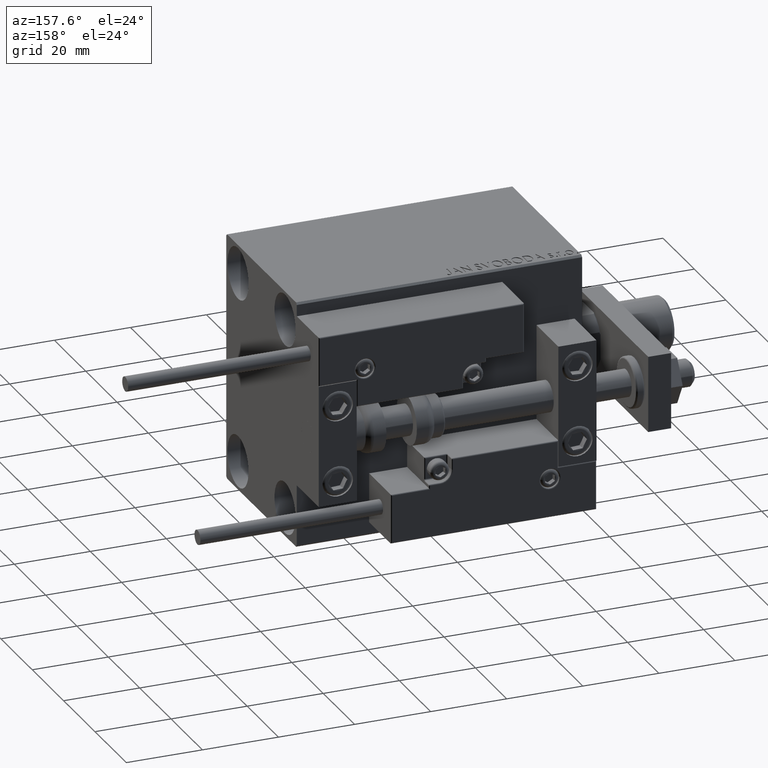
[diagram: clean part render]
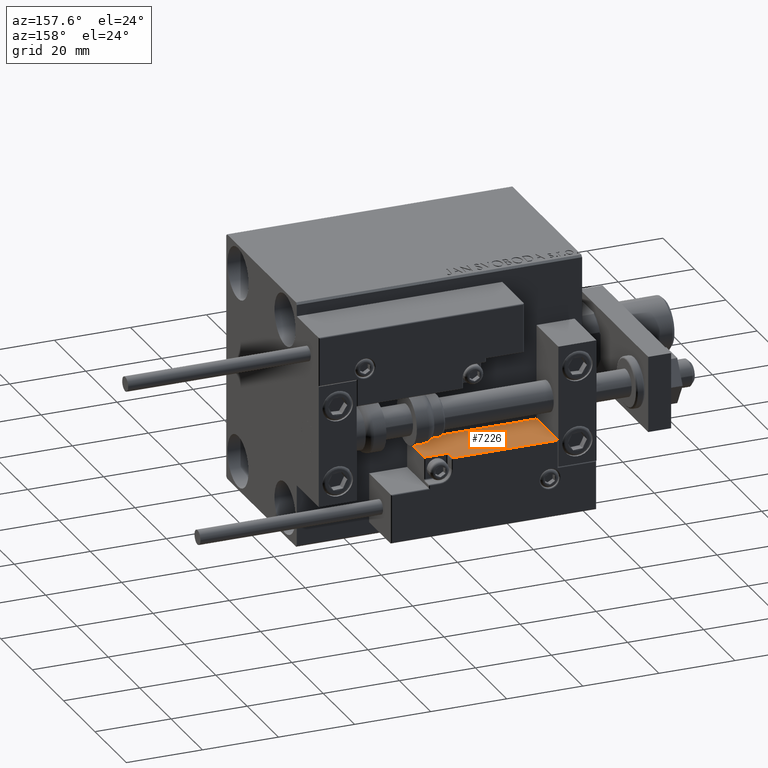
[diagram: same view with one face highlighted and labeled with its STEP entity id]
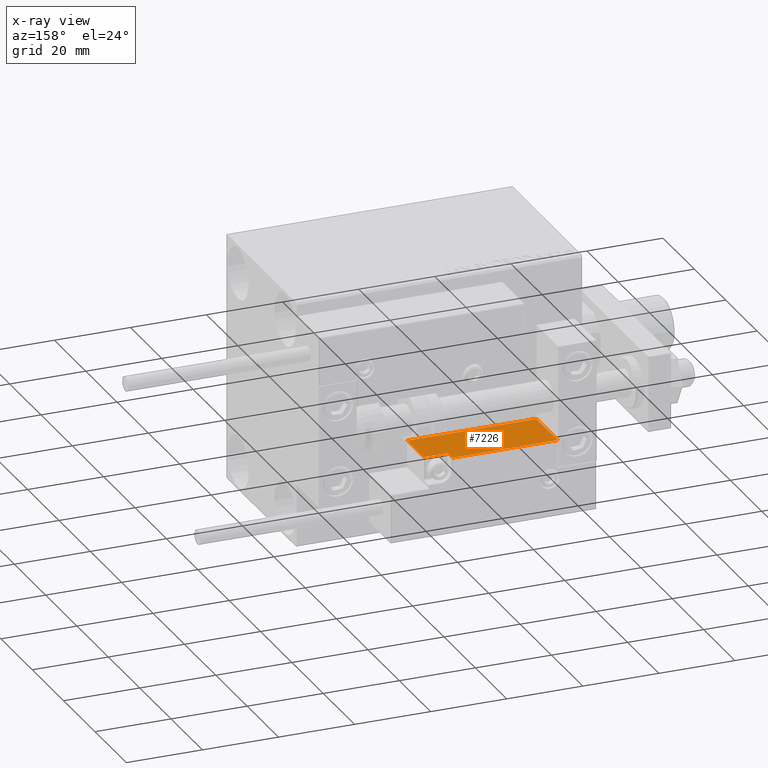
[diagram: x-ray of the same camera — body ghosted, the highlighted face saturated]
A machine part, auxiliary view. The second image highlights one B-rep face of the part: STEP entity #7226.
The next image is the same camera in x-ray: the body ghosted, the highlighted face saturated — about 0% of this face is hidden behind the body in this view.
In plain terms, the highlighted planar face has unit normal (-0, -0, -1).
Its self-contained STEP definition (entity closure, byte-faithful):
#827 = EDGE_CURVE ( 'NONE', #1530, #35574, #31218, .T. ) ;
#1530 = VERTEX_POINT ( 'NONE', #32802 ) ;
#2014 = VECTOR ( 'NONE', #29466, 1000.000000000000000 ) ;
#2025 = CARTESIAN_POINT ( 'NONE',  ( 11.00000000000000000, 3.252606517456513302E-15, 10.69999999999999929 ) ) ;
#2620 = VERTEX_POINT ( 'NONE', #25867 ) ;
#4227 = AXIS2_PLACEMENT_3D ( 'NONE', #48450, #17400, #20501 ) ;
#4231 = VERTEX_POINT ( 'NONE', #40750 ) ;
#5413 = DIRECTION ( 'NONE',  ( -1.000000000000000000, 0.000000000000000000, -0.000000000000000000 ) ) ;
#7226 = ADVANCED_FACE ( 'NONE', ( #16294 ), #15785, .F. ) ;
#7831 = ORIENTED_EDGE ( 'NONE', *, *, #48547, .T. ) ;
#9537 = EDGE_CURVE ( 'NONE', #15694, #2620, #24071, .T. ) ;
#10637 = ORIENTED_EDGE ( 'NONE', *, *, #827, .T. ) ;
#11492 = VERTEX_POINT ( 'NONE', #15076 ) ;
#14778 = EDGE_CURVE ( 'NONE', #35574, #2620, #22350, .T. ) ;
#14899 = DIRECTION ( 'NONE',  ( 1.000000000000000000, 0.000000000000000000, 0.000000000000000000 ) ) ;
#15076 = CARTESIAN_POINT ( 'NONE',  ( 10.70000000000000107, 3.252606517456513302E-15, 11.29999999999999893 ) ) ;
#15590 = EDGE_CURVE ( 'NONE', #15694, #4231, #49502, .T. ) ;
#15694 = VERTEX_POINT ( 'NONE', #19698 ) ;
#15785 = PLANE ( 'NONE',  #35011 ) ;
#15828 = CARTESIAN_POINT ( 'NONE',  ( 10.70000000000000107, 3.252606517456513302E-15, 13.70000000000000107 ) ) ;
#16294 = FACE_OUTER_BOUND ( 'NONE', #50184, .T. ) ;
#16701 = CARTESIAN_POINT ( 'NONE',  ( -16.99999999999999289, 3.252606517456513302E-15, 13.70000000000000107 ) ) ;
#16885 = DIRECTION ( 'NONE',  ( -0.000000000000000000, -0.000000000000000000, -1.000000000000000000 ) ) ;
#17210 = LINE ( 'NONE', #16701, #18262 ) ;
#17341 = CARTESIAN_POINT ( 'NONE',  ( -16.99999999999999289, 3.252606517456513302E-15, 0.000000000000000000 ) ) ;
#17386 = ORIENTED_EDGE ( 'NONE', *, *, #14778, .T. ) ;
#17400 = DIRECTION ( 'NONE',  ( -0.000000000000000000, -1.000000000000000000, -0.000000000000000000 ) ) ;
#17516 = DIRECTION ( 'NONE',  ( 0.000000000000000000, -0.000000000000000000, 1.000000000000000000 ) ) ;
#17740 = ORIENTED_EDGE ( 'NONE', *, *, #35234, .F. ) ;
#18262 = VECTOR ( 'NONE', #5413, 1000.000000000000000 ) ;
#19338 = ORIENTED_EDGE ( 'NONE', *, *, #9537, .F. ) ;
#19698 = CARTESIAN_POINT ( 'NONE',  ( 16.99999999999999289, 3.252606517456513302E-15, 10.69999999999999929 ) ) ;
#20501 = DIRECTION ( 'NONE',  ( 0.000000000000000000, 0.000000000000000000, 1.000000000000000000 ) ) ;
#22350 = LINE ( 'NONE', #41579, #47051 ) ;
#23234 = VERTEX_POINT ( 'NONE', #15828 ) ;
#24071 = LINE ( 'NONE', #31769, #25260 ) ;
#24496 = DIRECTION ( 'NONE',  ( 0.000000000000000000, 1.000000000000000000, 0.000000000000000000 ) ) ;
#24746 = ORIENTED_EDGE ( 'NONE', *, *, #15590, .T. ) ;
#25260 = VECTOR ( 'NONE', #16885, 1000.000000000000000 ) ;
#25867 = CARTESIAN_POINT ( 'NONE',  ( 16.99999999999999289, 3.252606517456513302E-15, 0.000000000000000000 ) ) ;
#29120 = ORIENTED_EDGE ( 'NONE', *, *, #38241, .T. ) ;
#29466 = DIRECTION ( 'NONE',  ( -1.000000000000000000, 0.000000000000000000, -0.000000000000000000 ) ) ;
#31218 = LINE ( 'NONE', #47114, #33283 ) ;
#31769 = CARTESIAN_POINT ( 'NONE',  ( 16.99999999999999289, 3.252606517456513302E-15, 14.00000000000000000 ) ) ;
#32217 = VECTOR ( 'NONE', #17516, 1000.000000000000000 ) ;
#32802 = CARTESIAN_POINT ( 'NONE',  ( -16.99999999999999289, 3.252606517456513302E-15, 13.70000000000000107 ) ) ;
#32903 = CARTESIAN_POINT ( 'NONE',  ( 10.70000000000000107, 3.252606517456513302E-15, 14.00000000000000000 ) ) ;
#33283 = VECTOR ( 'NONE', #50753, 1000.000000000000000 ) ;
#35011 = AXIS2_PLACEMENT_3D ( 'NONE', #39383, #24496, #43734 ) ;
#35234 = EDGE_CURVE ( 'NONE', #11492, #4231, #41922, .T. ) ;
#35574 = VERTEX_POINT ( 'NONE', #17341 ) ;
#36493 = LINE ( 'NONE', #32903, #32217 ) ;
#38241 = EDGE_CURVE ( 'NONE', #23234, #1530, #17210, .T. ) ;
#39383 = CARTESIAN_POINT ( 'NONE',  ( -16.99999999999999289, 3.252606517456513302E-15, 14.00000000000000000 ) ) ;
#40750 = CARTESIAN_POINT ( 'NONE',  ( 11.29999999999999893, 3.252606517456513302E-15, 10.69999999999999929 ) ) ;
#41579 = CARTESIAN_POINT ( 'NONE',  ( -16.99999999999999289, 3.252606517456513302E-15, 0.000000000000000000 ) ) ;
#41922 = CIRCLE ( 'NONE', #4227, 0.5999999999999998668 ) ;
#43734 = DIRECTION ( 'NONE',  ( 0.000000000000000000, -0.000000000000000000, 1.000000000000000000 ) ) ;
#47051 = VECTOR ( 'NONE', #14899, 1000.000000000000000 ) ;
#47114 = CARTESIAN_POINT ( 'NONE',  ( -16.99999999999999289, 3.252606517456513302E-15, 14.00000000000000000 ) ) ;
#48450 = CARTESIAN_POINT ( 'NONE',  ( 11.29999999999999893, 3.252606517456513302E-15, 11.29999999999999893 ) ) ;
#48547 = EDGE_CURVE ( 'NONE', #11492, #23234, #36493, .T. ) ;
#49502 = LINE ( 'NONE', #2025, #2014 ) ;
#50184 = EDGE_LOOP ( 'NONE', ( #19338, #24746, #17740, #7831, #29120, #10637, #17386 ) ) ;
#50753 = DIRECTION ( 'NONE',  ( -0.000000000000000000, -0.000000000000000000, -1.000000000000000000 ) ) ;